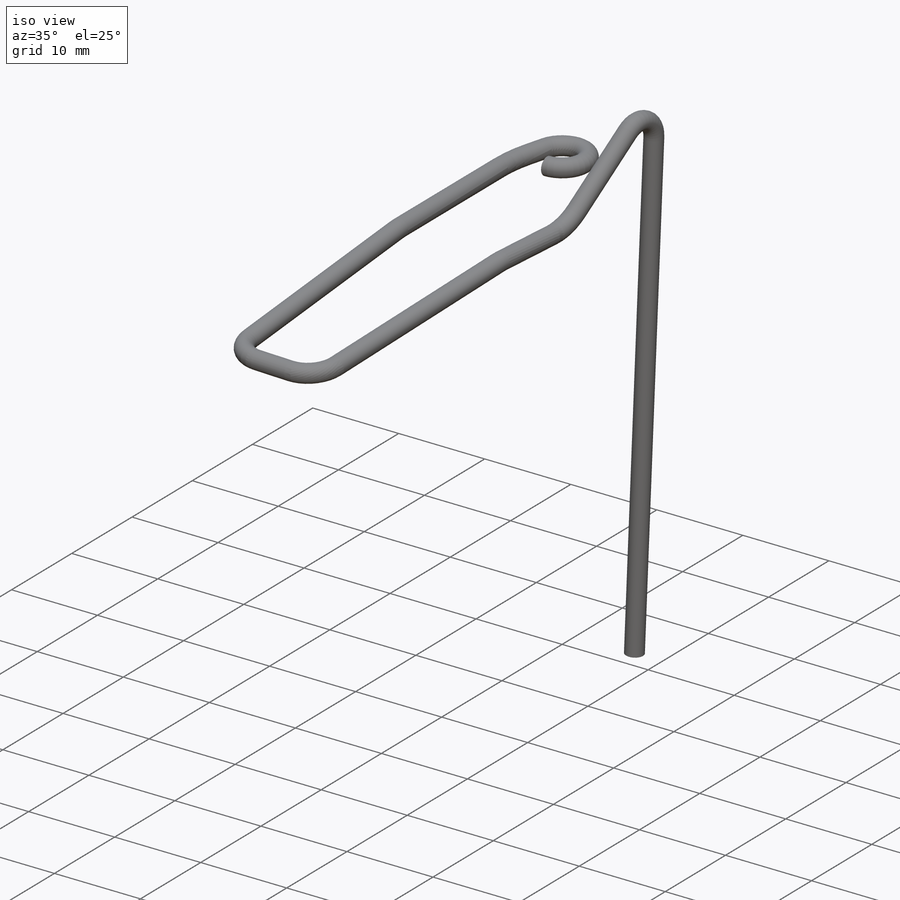
[diagram: iso view]
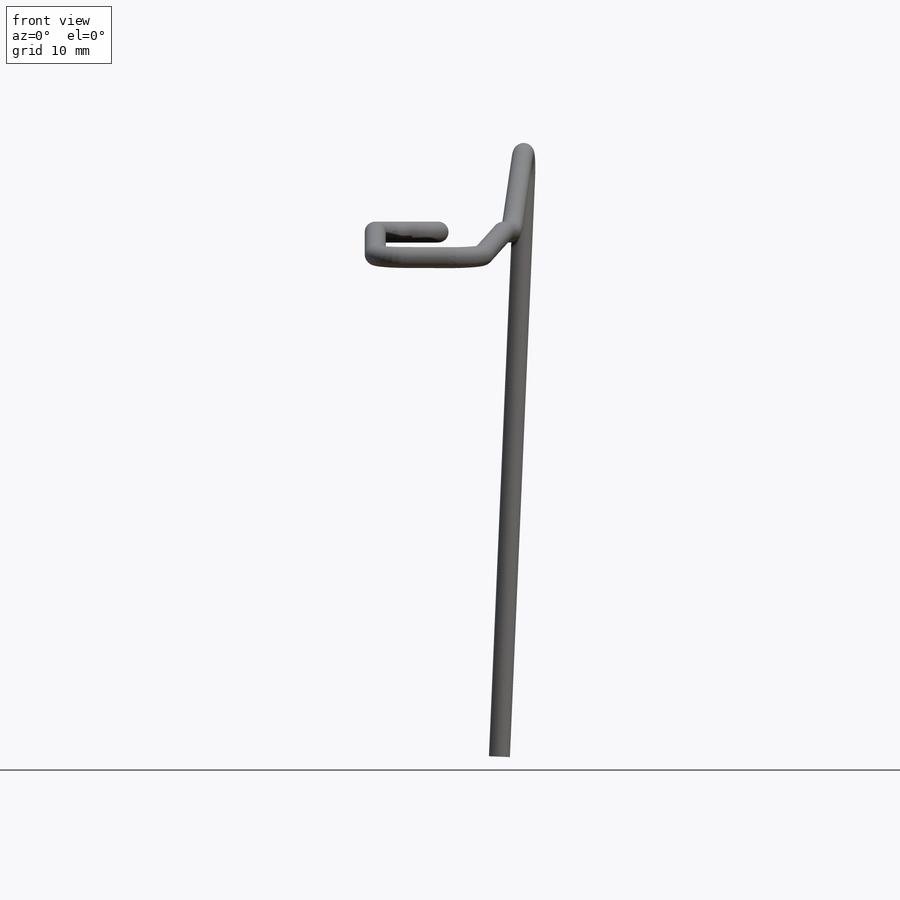
[diagram: front view]
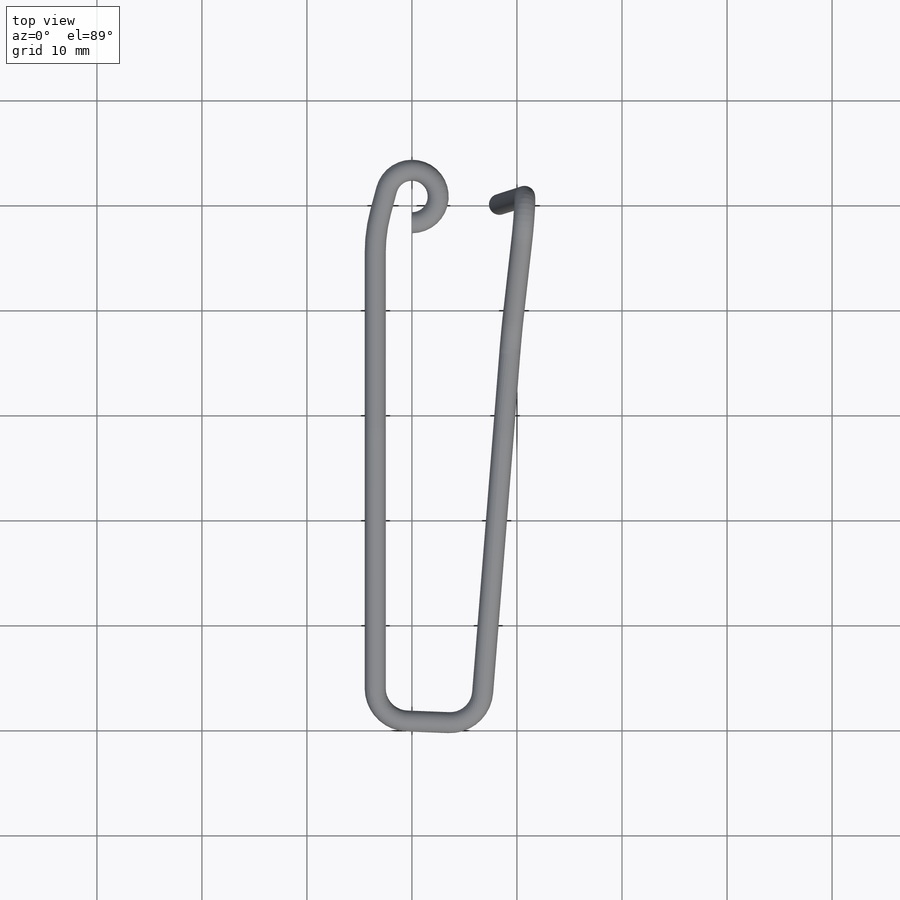
[diagram: top view]
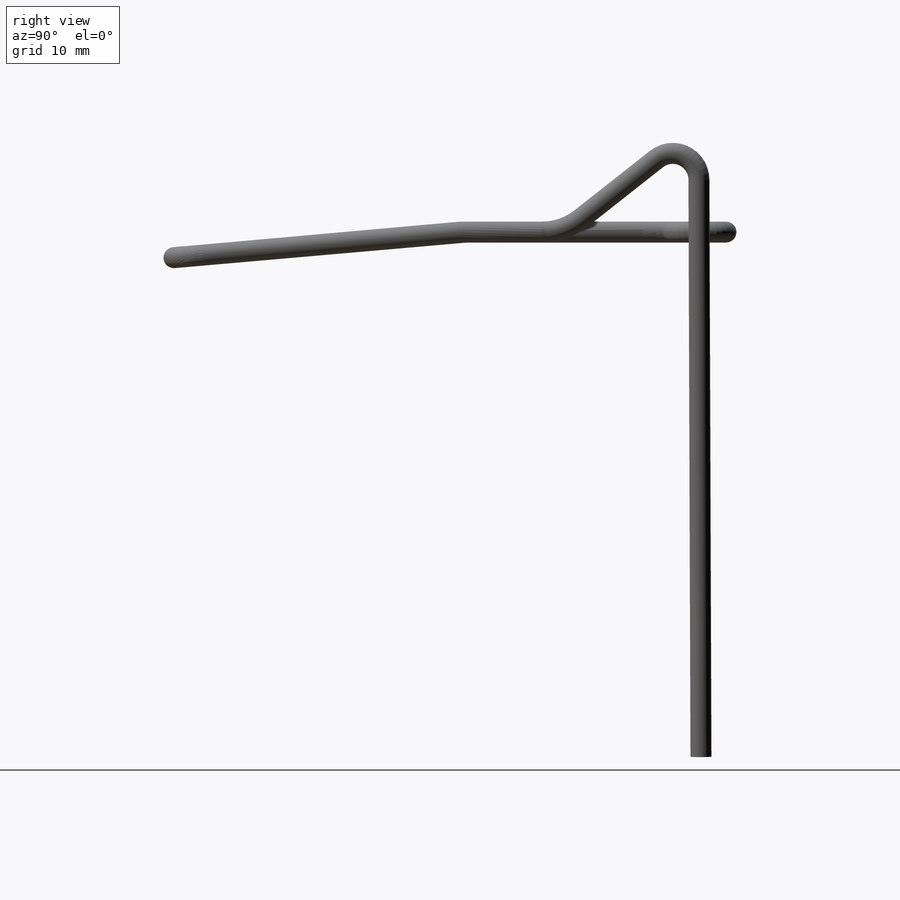
[diagram: right view]
SOLIDWORKS PART (.sldprt)
format: sldprt  version: not decoded by parser v0  size: 1,084,416 bytes
history: native  units: mm
features: sketch x13, plane x8, sweep x5, extrude x2, material x1 + 1 further entry (+15 scaffold rows collapsed)
feature tree (45):
  scaffold x15  (default folders/planes/origin — collapsed)
  material  "Alloy Steel"
  "Design Table"
  sketch  "Sketch1"  dims[c1.D1=2.5mm c1.D2=5.0mm c1.D6=4.5mm c1.D10=15.0mm c1.D3=70.0mm c1.D4=15.0mm c1.D5=22.5mm c1.D7=11.0mm c1.D8=2.5mm c1.D9=15.0mm c2.D9=90.0deg c3.D9=3.5mm c3.D11=~5.975672mm c4.D11=15.0deg c4.D3=22.0mm c4.D2=10.0mm c4.D12=28.0mm c4.D13=28.0mm c5.D13=~21.086614deg]
  plane  "Plane2"
  sketch  "Sketch4"  dims[D1=2.0mm D2=10.0mm]
  sweep  "Sweep1"
  plane  "Plane3"
  sketch  "Drejningsvinkel"  dims[c1.D1=10.0mm c1.D2=10.0mm c2.D2=5.0deg c2.D1=10.0mm c3.D2=10.0mm c4.D2=96.3deg]
  sketch  "Sketch12"  dims[D1=0.0mm]
  plane  "Plane7"
  sketch  "Sketch13"  dims[c1.D1=5.0mm c1.D2=25.0mm c2.D2=5.0deg c2.D3=3.0mm]
  sweep  "Sweep3"
  plane  "Plane8"
  sketch  "Sketch14"
  sketch  "Sketch15"  dims[D1=0.0mm]
  sweep  "Sweep4"
  plane  "Plane9"
  sketch  "Sketch16"  dims[D1=5.0mm]
  sketch  "Sketch17"  dims[D1=0.0mm]
  sweep  "Sweep5"
  plane  "Plane4"
  sketch  "Sketch18"  dims[D1=0.0mm]
  sketch  "Sketch3"  dims[c1.D1=3.0mm c1.D2=5.0mm c2.D1=2.5mm c2.D2=6.0mm c2.D3=15.0mm c2.D4=2.0mm c2.D5=45.0mm c2.D6=21.0mm c3.D3=5.0mm c3.D4=22.0mm c3.D5=50.0mm c4.D4=24.0mm]
  sweep  "Sweep2"
  plane  "Plane5"
  sketch  "Sketch7"  dims[D1=1.2mm D2=1.1mm D3=2.0mm D4=3.0mm D5=26.0mm]
  extrude  "Extrude1"  Depth=1.2mm
  plane  "Plane6"  Offset=1.1mm
  sketch  "Sketch11"  dims[c1.D1=~14.935929mm c1.D2=~25.555376mm c2.D2=~4.949339deg c3.D2=~12.230014mm c3.D3=~9.73961mm c3.faceID=8.0 c4.faceID=18.0]
  extrude  "Axis2"  Depth=36 faceID=36
decode coverage: 14 of 20 modeling features carry decoded parameters; 1 rows unclassified (native names shown)
note: ~ marks probable driven/reference dimensions
summary: profile_refs inferred from adjacent sketches, not decoded
note: suppression state not decoded; provenance and decode notes live in map.json
